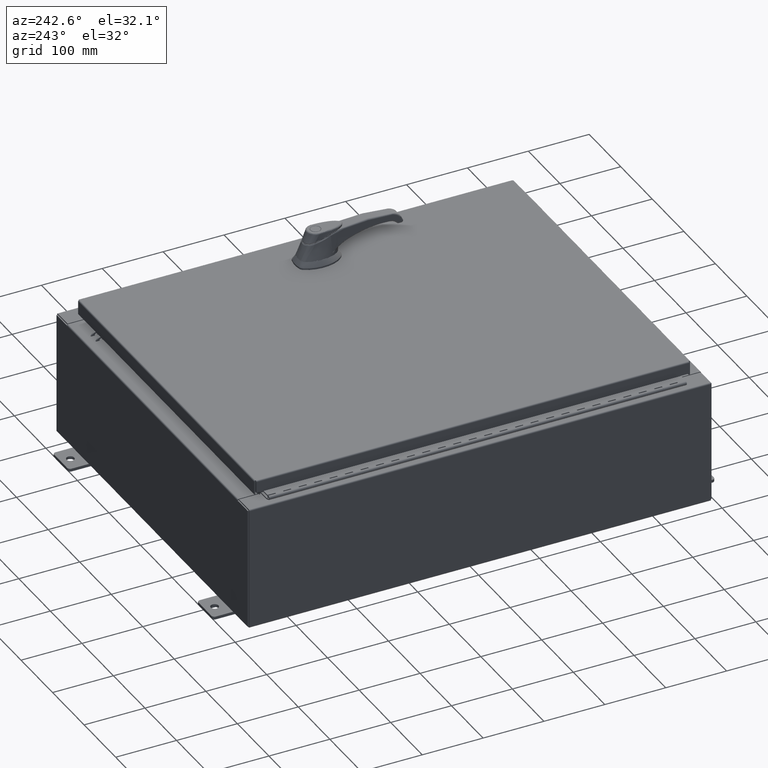
[diagram: clean part render]
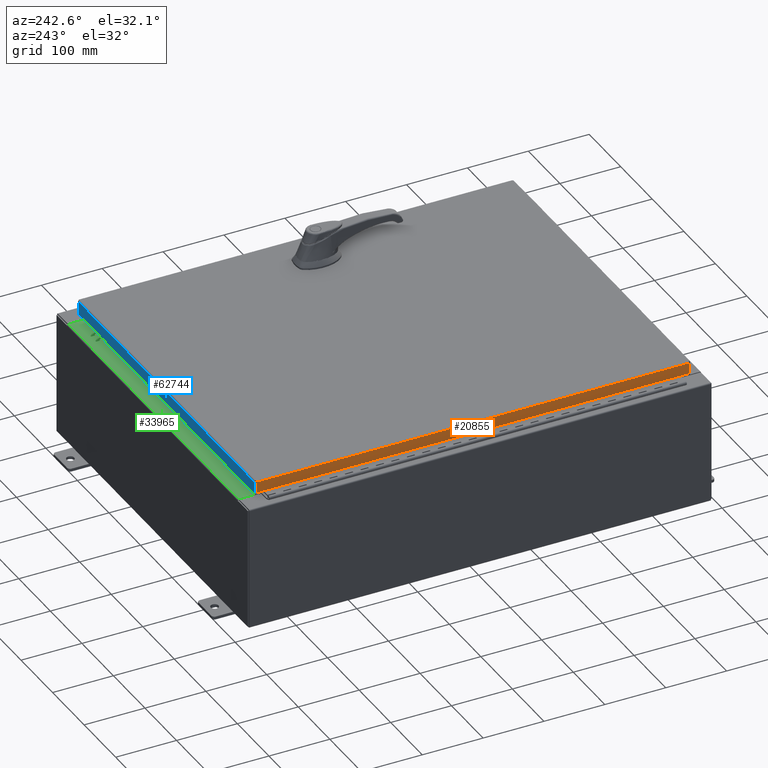
[diagram: same view with three faces highlighted in distinct colors, each labeled with its STEP entity id]
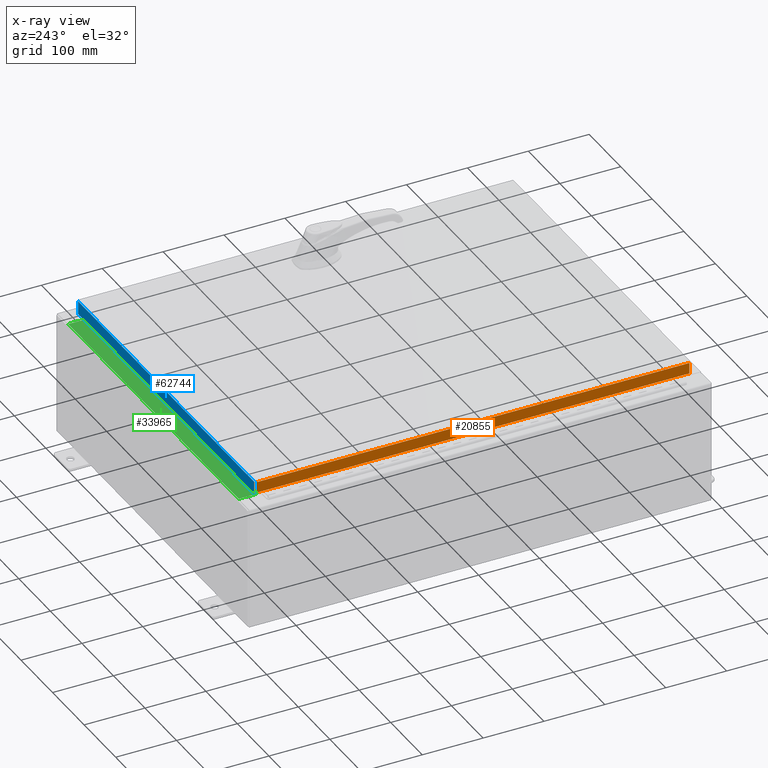
[diagram: x-ray of the same camera — body ghosted, the three highlighted faces saturated]
A machine part, auxiliary view with three faces highlighted in distinct colors.
The next image is the same camera in x-ray (body ghosted, the three faces saturated) — at least one of them is partly hidden behind the body in this view.
Their STEP definitions:

[orange] entity #20855 — the highlighted planar face has unit normal (1, 0, -0).
#53 = ORIENTED_EDGE ( 'NONE', *, *, #46743, .F. ) ;
#6481 = AXIS2_PLACEMENT_3D ( 'NONE', #71132, #80395, #25639 ) ;
#11271 = CARTESIAN_POINT ( 'NONE',  ( -11.07800000000000300, 14.00515786437627400, -0.7949999999999962700 ) ) ;
#15033 = VECTOR ( 'NONE', #79072, 39.37007874015748100 ) ;
#16746 = VECTOR ( 'NONE', #55411, 39.37007874015748100 ) ;
#18959 = VERTEX_POINT ( 'NONE', #112605 ) ;
#20855 = ADVANCED_FACE ( 'NONE', ( #29136 ), #116838, .F. ) ;
#25639 = DIRECTION ( 'NONE',  ( -3.034122441942816500E-015, 0.0000000000000000000, -1.000000000000000000 ) ) ;
#25718 = EDGE_CURVE ( 'NONE', #67485, #18959, #37429, .T. ) ;
#29136 = FACE_OUTER_BOUND ( 'NONE', #107691, .T. ) ;
#30207 = CARTESIAN_POINT ( 'NONE',  ( -11.07799999999999900, 14.00515786437626900, -0.08770000000000004200 ) ) ;
#31207 = CARTESIAN_POINT ( 'NONE',  ( -11.07800000000000300, -14.09399999999999600, -0.7949999999999997100 ) ) ;
#34252 = CARTESIAN_POINT ( 'NONE',  ( -11.07799999999999900, -14.09399999999999600, -0.08770000000000004200 ) ) ;
#37429 = LINE ( 'NONE', #117512, #58832 ) ;
#39022 = VECTOR ( 'NONE', #40347, 39.37007874015748100 ) ;
#40347 = DIRECTION ( 'NONE',  ( -4.379057701015054300E-047, 1.000000000000000000, 1.211441035930299800E-016 ) ) ;
#42134 = LINE ( 'NONE', #34252, #15033 ) ;
#43697 = ORIENTED_EDGE ( 'NONE', *, *, #25718, .F. ) ;
#46743 = EDGE_CURVE ( 'NONE', #18959, #83381, #109208, .T. ) ;
#55411 = DIRECTION ( 'NONE',  ( -3.034122441942816500E-015, 6.982962677686265900E-015, -1.000000000000000000 ) ) ;
#58832 = VECTOR ( 'NONE', #89872, 39.37007874015748100 ) ;
#66574 = CARTESIAN_POINT ( 'NONE',  ( -11.07799999999999900, -14.00515786437626400, -0.08770000000000007000 ) ) ;
#67485 = VERTEX_POINT ( 'NONE', #66574 ) ;
#71132 = CARTESIAN_POINT ( 'NONE',  ( -11.07799999999999900, -4.071896629014046000E-030, 3.387282206785410600E-014 ) ) ;
#76382 = ORIENTED_EDGE ( 'NONE', *, *, #97778, .F. ) ;
#79072 = DIRECTION ( 'NONE',  ( 3.675660434206577100E-031, -1.000000000000000000, -1.083515668565077200E-045 ) ) ;
#80395 = DIRECTION ( 'NONE',  ( 1.000000000000000000, 3.675660434206576600E-031, -3.034122441942816500E-015 ) ) ;
#83381 = VERTEX_POINT ( 'NONE', #11271 ) ;
#89872 = DIRECTION ( 'NONE',  ( -3.034122441942816500E-015, 6.982962677686265900E-015, -1.000000000000000000 ) ) ;
#90598 = VERTEX_POINT ( 'NONE', #30207 ) ;
#96363 = ORIENTED_EDGE ( 'NONE', *, *, #108039, .T. ) ;
#97778 = EDGE_CURVE ( 'NONE', #90598, #67485, #42134, .T. ) ;
#101047 = CARTESIAN_POINT ( 'NONE',  ( -11.07799999999999900, 14.00515786437626900, 1.316703167298978800E-013 ) ) ;
#107691 = EDGE_LOOP ( 'NONE', ( #76382, #96363, #53, #43697 ) ) ;
#108039 = EDGE_CURVE ( 'NONE', #90598, #83381, #111209, .T. ) ;
#109208 = LINE ( 'NONE', #31207, #39022 ) ;
#111209 = LINE ( 'NONE', #101047, #16746 ) ;
#112605 = CARTESIAN_POINT ( 'NONE',  ( -11.07800000000000300, -14.00515786437626200, -0.7949999999999996000 ) ) ;
#116838 = PLANE ( 'NONE',  #6481 ) ;
#117512 = CARTESIAN_POINT ( 'NONE',  ( -11.07799999999999900, -14.00515786437626500, -0.07469999999999976700 ) ) ;

[blue] entity #62744 — the highlighted planar face has unit normal (0, -1, -0).
#2500 = VERTEX_POINT ( 'NONE', #70800 ) ;
#4148 = CARTESIAN_POINT ( 'NONE',  ( -10.98915786437626900, 14.09399999999999900, -0.07469999999999980800 ) ) ;
#4930 = PLANE ( 'NONE',  #62507 ) ;
#5878 = EDGE_CURVE ( 'NONE', #2500, #66403, #87521, .T. ) ;
#8943 = FACE_OUTER_BOUND ( 'NONE', #41935, .T. ) ;
#14191 = DIRECTION ( 'NONE',  ( 3.122488847327582500E-031, -1.000000000000000000, -2.532419924601858200E-015 ) ) ;
#16705 = EDGE_CURVE ( 'NONE', #2500, #37952, #85468, .T. ) ;
#16929 = VERTEX_POINT ( 'NONE', #44089 ) ;
#22460 = ORIENTED_EDGE ( 'NONE', *, *, #30875, .F. ) ;
#22598 = DIRECTION ( 'NONE',  ( -0.0000000000000000000, 2.532419924601858200E-015, -1.000000000000000000 ) ) ;
#23199 = EDGE_CURVE ( 'NONE', #16929, #37952, #64519, .T. ) ;
#23392 = CARTESIAN_POINT ( 'NONE',  ( -10.98915786437626700, 14.09399999999999900, -0.08770000000000008300 ) ) ;
#30875 = EDGE_CURVE ( 'NONE', #66403, #16929, #35521, .T. ) ;
#35521 = LINE ( 'NONE', #4148, #105658 ) ;
#37952 = VERTEX_POINT ( 'NONE', #58394 ) ;
#39417 = DIRECTION ( 'NONE',  ( 0.0000000000000000000, 2.532419924601858200E-015, -1.000000000000000000 ) ) ;
#41935 = EDGE_LOOP ( 'NONE', ( #44522, #70892, #112391, #22460 ) ) ;
#44089 = CARTESIAN_POINT ( 'NONE',  ( -10.98915786437626900, 14.09400000000000100, -0.9377000000000025300 ) ) ;
#44522 = ORIENTED_EDGE ( 'NONE', *, *, #5878, .F. ) ;
#44540 = VECTOR ( 'NONE', #65164, 39.37007874015748100 ) ;
#58394 = CARTESIAN_POINT ( 'NONE',  ( 10.98915786437626700, 14.09400000000000100, -0.9376999999999997600 ) ) ;
#61051 = VECTOR ( 'NONE', #39417, 39.37007874015748100 ) ;
#62507 = AXIS2_PLACEMENT_3D ( 'NONE', #68822, #14191, #78098 ) ;
#62744 = ADVANCED_FACE ( 'NONE', ( #8943 ), #4930, .F. ) ;
#64519 = LINE ( 'NONE', #86548, #110434 ) ;
#65164 = DIRECTION ( 'NONE',  ( -1.000000000000000000, -3.122488847327583000E-031, -7.817847125977018100E-046 ) ) ;
#66403 = VERTEX_POINT ( 'NONE', #23392 ) ;
#68822 = CARTESIAN_POINT ( 'NONE',  ( -4.400835781423494800E-030, 14.09399999999999900, 3.595274007335016100E-014 ) ) ;
#70800 = CARTESIAN_POINT ( 'NONE',  ( 10.98915786437626700, 14.09399999999999900, -0.08770000000000008300 ) ) ;
#70892 = ORIENTED_EDGE ( 'NONE', *, *, #16705, .T. ) ;
#78098 = DIRECTION ( 'NONE',  ( 0.0000000000000000000, 2.532419924601858200E-015, -1.000000000000000000 ) ) ;
#85468 = LINE ( 'NONE', #94223, #61051 ) ;
#86548 = CARTESIAN_POINT ( 'NONE',  ( -11.07799999999999900, 14.09400000000000100, -0.9377000000000025300 ) ) ;
#87521 = LINE ( 'NONE', #92820, #44540 ) ;
#92820 = CARTESIAN_POINT ( 'NONE',  ( -11.07799999999999900, 14.09399999999999900, -0.08770000000000008300 ) ) ;
#94223 = CARTESIAN_POINT ( 'NONE',  ( 10.98915786437626900, 14.09399999999999900, 3.595274007335016100E-014 ) ) ;
#105658 = VECTOR ( 'NONE', #22598, 39.37007874015748100 ) ;
#110434 = VECTOR ( 'NONE', #113782, 39.37007874015748100 ) ;
#112391 = ORIENTED_EDGE ( 'NONE', *, *, #23199, .F. ) ;
#113782 = DIRECTION ( 'NONE',  ( 1.000000000000000000, -4.379057701015054300E-047, 1.233005954894504400E-016 ) ) ;

[green] entity #33965 — the highlighted planar face has unit normal (0, 0, 1).
#5745 = LINE ( 'NONE', #19406, #54350 ) ;
#11846 = ORIENTED_EDGE ( 'NONE', *, *, #77918, .F. ) ;
#19406 = CARTESIAN_POINT ( 'NONE',  ( -2.252313287748606700E-018, -0.08770000000000000000, 4.000000000000000900 ) ) ;
#21476 = CARTESIAN_POINT ( 'NONE',  ( 10.63720000000000400, -1.287299999999999900, 4.000000000000003600 ) ) ;
#25071 = DIRECTION ( 'NONE',  ( 0.0000000000000000000, 3.566381192773190000E-015, 1.000000000000000000 ) ) ;
#28194 = EDGE_LOOP ( 'NONE', ( #46571, #74517, #11846, #91419 ) ) ;
#30724 = EDGE_CURVE ( 'NONE', #59223, #60604, #117144, .T. ) ;
#31967 = EDGE_CURVE ( 'NONE', #53708, #60604, #5745, .T. ) ;
#33817 = PLANE ( 'NONE',  #98700 ) ;
#33965 = ADVANCED_FACE ( 'NONE', ( #94210 ), #33817, .T. ) ;
#35636 = LINE ( 'NONE', #46243, #54160 ) ;
#45838 = CARTESIAN_POINT ( 'NONE',  ( 10.63720000000000200, -1.287299999999999900, 4.000000000000004400 ) ) ;
#46243 = CARTESIAN_POINT ( 'NONE',  ( 10.63720000000000200, -1.300299999999999800, 4.000000000000004400 ) ) ;
#46571 = ORIENTED_EDGE ( 'NONE', *, *, #30724, .F. ) ;
#53708 = VERTEX_POINT ( 'NONE', #82283 ) ;
#54160 = VECTOR ( 'NONE', #82736, 39.37007874015748100 ) ;
#54350 = VECTOR ( 'NONE', #65259, 39.37007874015748100 ) ;
#58129 = DIRECTION ( 'NONE',  ( -1.000000000000000000, 0.0000000000000000000, 0.0000000000000000000 ) ) ;
#59223 = VERTEX_POINT ( 'NONE', #63222 ) ;
#60604 = VERTEX_POINT ( 'NONE', #115897 ) ;
#62689 = LINE ( 'NONE', #21476, #84264 ) ;
#63222 = CARTESIAN_POINT ( 'NONE',  ( -10.63720000000000200, -1.287299999999999200, 4.000000000000004400 ) ) ;
#65259 = DIRECTION ( 'NONE',  ( -1.000000000000000000, 2.568202152506545800E-017, -9.159187855938968600E-032 ) ) ;
#65518 = VECTOR ( 'NONE', #70951, 39.37007874015748100 ) ;
#67332 = VERTEX_POINT ( 'NONE', #45838 ) ;
#70951 = DIRECTION ( 'NONE',  ( -0.0000000000000000000, 1.000000000000000000, -3.566381192773190000E-015 ) ) ;
#74517 = ORIENTED_EDGE ( 'NONE', *, *, #83996, .F. ) ;
#77918 = EDGE_CURVE ( 'NONE', #53708, #67332, #35636, .T. ) ;
#82283 = CARTESIAN_POINT ( 'NONE',  ( 10.63720000000000400, -0.08769999999999965300, 4.000000000000000000 ) ) ;
#82736 = DIRECTION ( 'NONE',  ( -0.0000000000000000000, -1.000000000000000000, 3.566381192773190000E-015 ) ) ;
#83996 = EDGE_CURVE ( 'NONE', #67332, #59223, #62689, .T. ) ;
#84264 = VECTOR ( 'NONE', #58129, 39.37007874015748100 ) ;
#89002 = DIRECTION ( 'NONE',  ( 0.0000000000000000000, -1.000000000000000000, 3.566381192773190000E-015 ) ) ;
#91419 = ORIENTED_EDGE ( 'NONE', *, *, #31967, .T. ) ;
#94210 = FACE_OUTER_BOUND ( 'NONE', #28194, .T. ) ;
#98700 = AXIS2_PLACEMENT_3D ( 'NONE', #116250, #25071, #89002 ) ;
#107444 = CARTESIAN_POINT ( 'NONE',  ( -10.63720000000000200, -0.07469999999999973900, 4.000000000000000000 ) ) ;
#115897 = CARTESIAN_POINT ( 'NONE',  ( -10.63720000000000200, -0.08770000000000000000, 4.000000000000000000 ) ) ;
#116250 = CARTESIAN_POINT ( 'NONE',  ( 0.0000000000000000000, 1.425992975200418500E-014, 4.000000000000000000 ) ) ;
#117144 = LINE ( 'NONE', #107444, #65518 ) ;